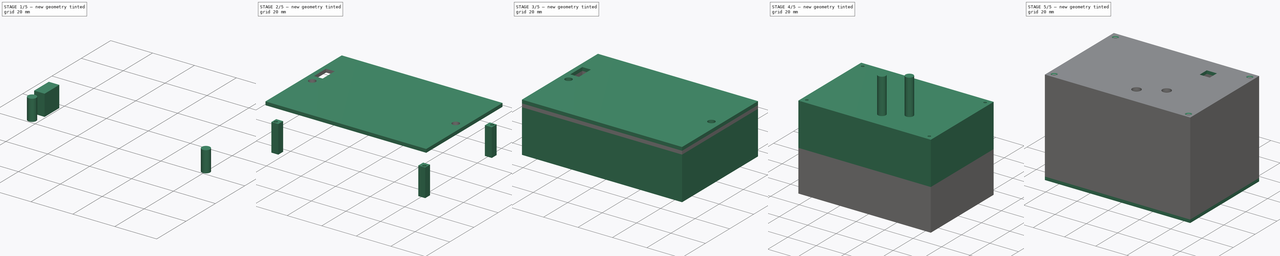
[diagram: build sequence overview — one tinted view per stage of 5, left to right]
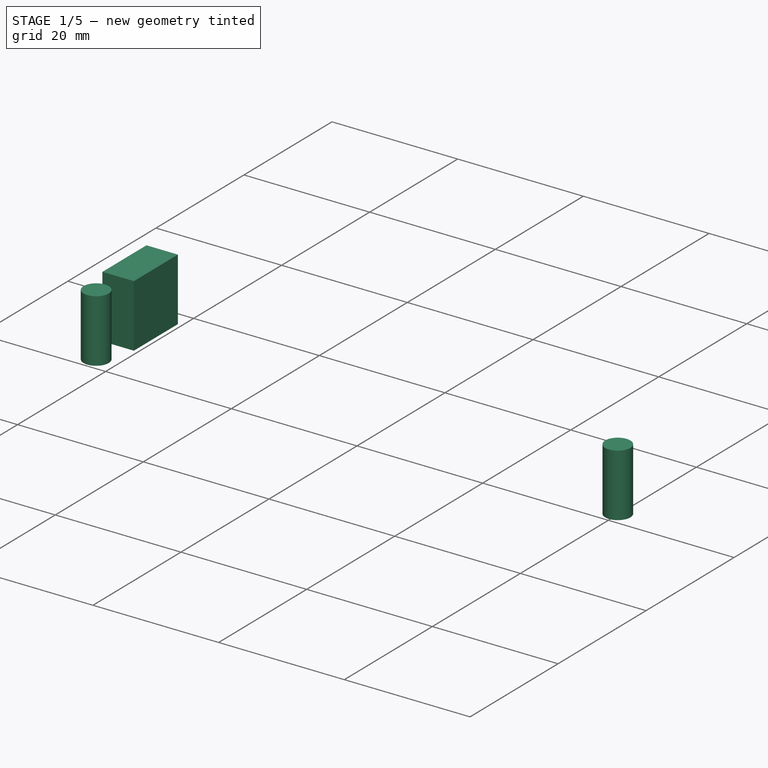
[diagram: stage 1 of 5 — iso view after this stage's code; geometry added in this stage tinted green]
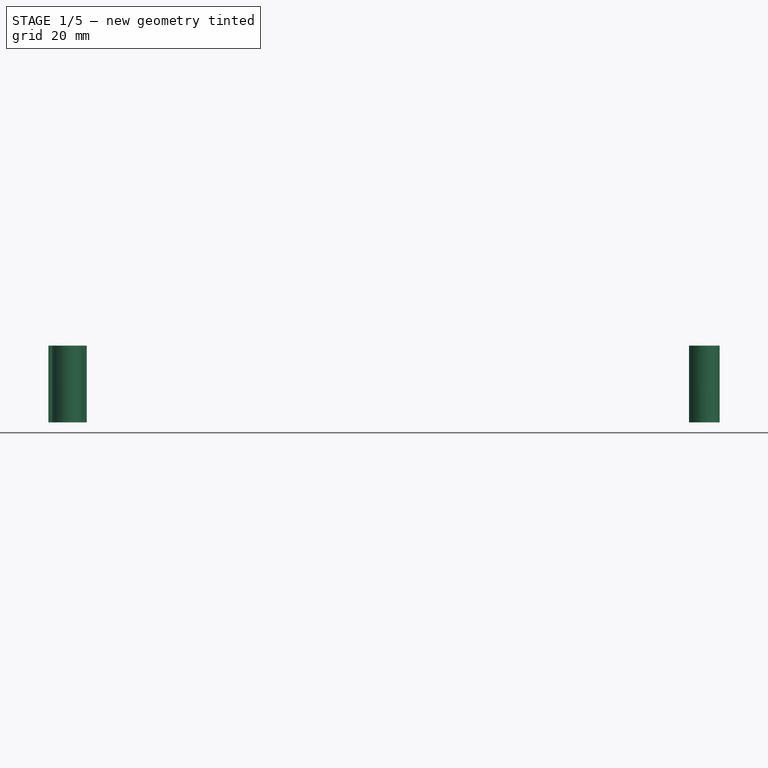
[diagram: stage 1 of 5 — front view after this stage's code; geometry added in this stage tinted green]
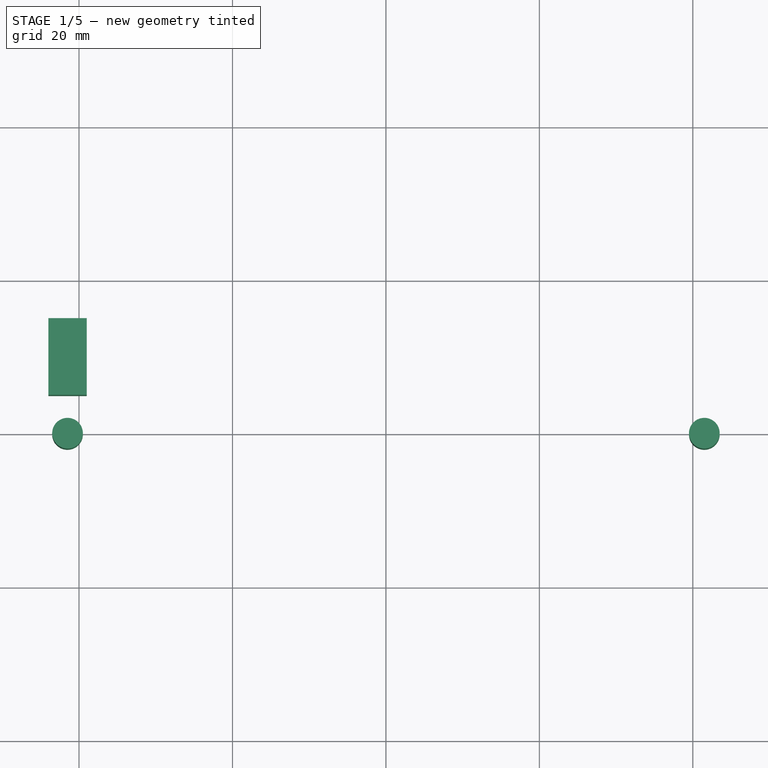
[diagram: stage 1 of 5 — top view after this stage's code; geometry added in this stage tinted green]
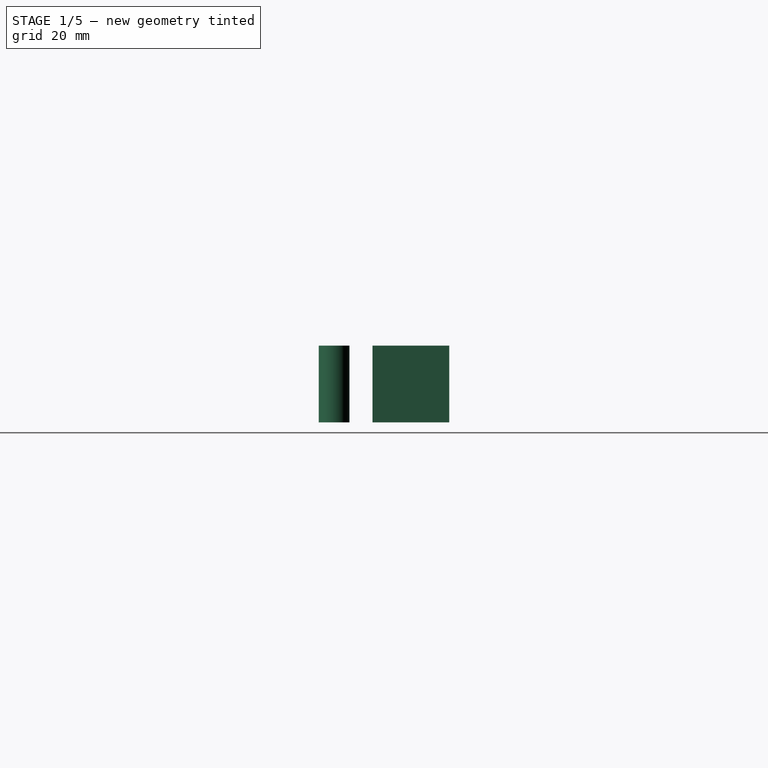
[diagram: stage 1 of 5 — right view after this stage's code; geometry added in this stage tinted green]
FCSTD DOCUMENT  (FreeCAD 0.16R6704 (Git))
Label: CajaDetectorInundacion_01
License: All rights reserved
LicenseURL: http://en.wikipedia.org/wiki/All_rights_reserved
objects: Part::Extrusion×14, Sketcher::SketchObject×12, Part::Cut×6, Part::Chamfer×2, Part::MultiFuse×2
note: 36 computed .brp shape members not serialized (recipe doc carries the construction recipe); baked Part::Feature solids carry a one-line shape summary decoded from their .brp

FEATURE [Sketcher::SketchObject] Sketch
  sketch-geometry (4):
    g0: LineSegment StartX=-46.5 StartY=31.5 StartZ=0 EndX=46.5 EndY=31.5 EndZ=0
    g1: LineSegment StartX=46.5 StartY=31.5 StartZ=0 EndX=46.5 EndY=-31.5 EndZ=0
    g2: LineSegment StartX=46.5 StartY=-31.5 StartZ=0 EndX=-46.5 EndY=-31.5 EndZ=0
    g3: LineSegment StartX=-46.5 StartY=-31.5 StartZ=0 EndX=-46.5 EndY=31.5 EndZ=0
  constraints (12):
    c: Coincident(g0,g1)
    c: Coincident(g1,g2)
    c: Coincident(g2,g3)
    c: Coincident(g3,g0)
    c: Horizontal(g0)
    c: Horizontal(g2)
    c: Vertical(g1)
    c: Vertical(g3)
    c: DistanceX(g0,g0) = 93
    c: DistanceY(g1,g0) = 63
    c: Symmetric(g0,g0,g-2)
    c: Symmetric(g1,g0,g-1)
FEATURE [Part::Extrusion] Extrude  label="Base"
  Base = -> Sketch
  Dir = (0,0,2)
  Solid = true
FEATURE [Sketcher::SketchObject] Sketch005
  Placement = pos=(0,0,2) rot=(0,0,1;0rad)
  Support = -> Extrude [Face6]
  sketch-geometry (2):
    g0: Circle CenterX=-41.5 CenterY=0 CenterZ=0 NormalX=0 NormalY=0 NormalZ=1 Radius=2
    g1: Circle CenterX=41.5 CenterY=0 CenterZ=0 NormalX=0 NormalY=0 NormalZ=1 Radius=2
  constraints (5):
    c: Symmetric(g1,g0,g-2)
    c: PointOnObject(g0,g-1)
    c: DistanceX(g0,g1) = 83
    c: Radius(g0) = 2
    c: Radius(g1) = 2
FEATURE [Part::Extrusion] Extrude005
  Base = -> Sketch005
  Dir = (0,0,-10)
  Solid = true
FEATURE [Part::Cut] Cut  label="BaseCajaPCB"
  Base = -> Extrude
  Tool = -> Extrude005
FEATURE [Sketcher::SketchObject] Sketch007
  Placement = pos=(0,0,2) rot=(0,0,1;0rad)
  sketch-geometry (2):
    g0: Circle CenterX=-41.5 CenterY=0 CenterZ=0 NormalX=0 NormalY=0 NormalZ=1 Radius=2
    g1: Circle CenterX=41.5 CenterY=0 CenterZ=0 NormalX=0 NormalY=0 NormalZ=1 Radius=2
  constraints (5):
    c: Symmetric(g1,g0,g-2)
    c: PointOnObject(g0,g-1)
    c: DistanceX(g0,g1) = 83
    c: Radius(g0) = 2
    c: Radius(g1) = 2
FEATURE [Part::Extrusion] Extrude007
  Base = -> Sketch007
  Dir = (0,0,-10)
  Solid = true
FEATURE [Part::Extrusion] Extrude012  label="HuecoCables001"
  Base = -> Sketch010
  Dir = (0,0,-10)
  Solid = true
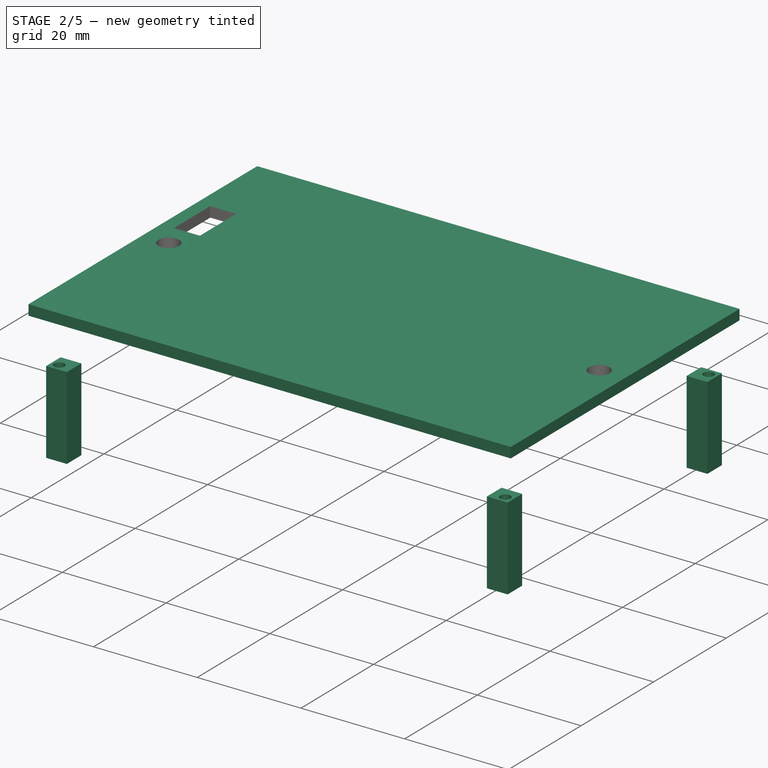
[diagram: stage 2 of 5 — iso view after this stage's code; geometry added in this stage tinted green]
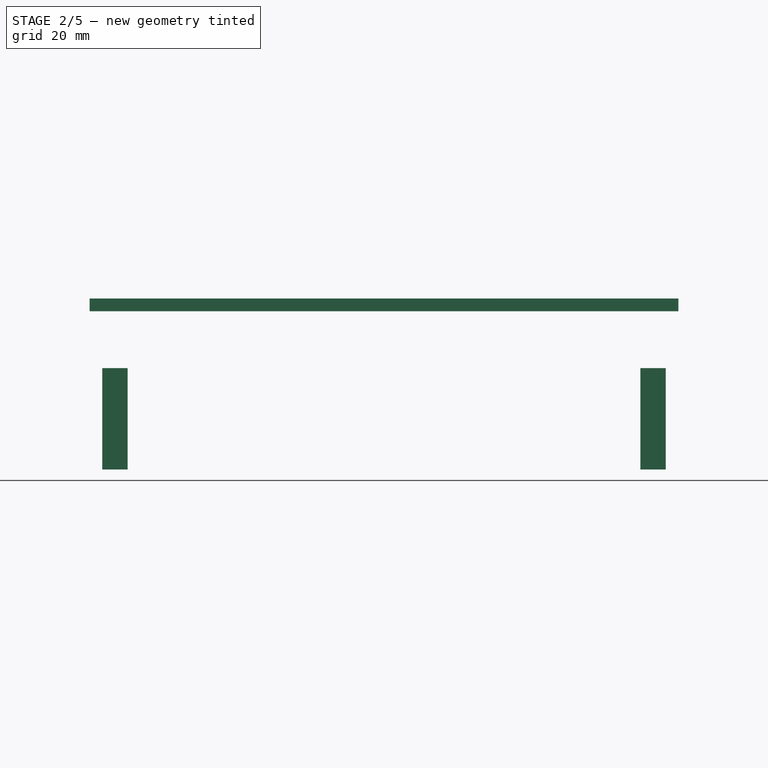
[diagram: stage 2 of 5 — front view after this stage's code; geometry added in this stage tinted green]
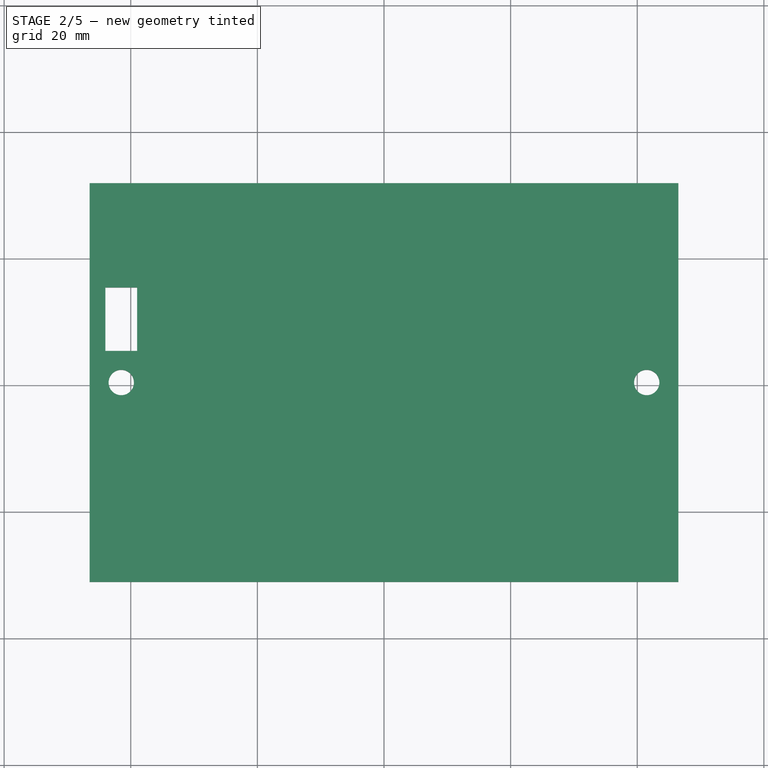
[diagram: stage 2 of 5 — top view after this stage's code; geometry added in this stage tinted green]
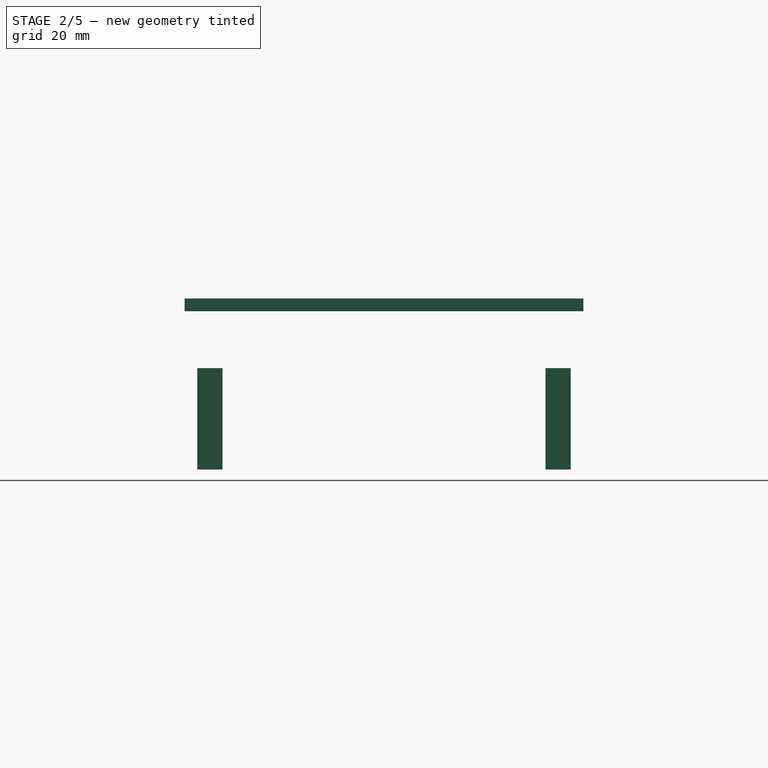
[diagram: stage 2 of 5 — right view after this stage's code; geometry added in this stage tinted green]
FEATURE [Sketcher::SketchObject] Sketch001
  ExternalGeometry = -> [Extrude]
  Placement = pos=(0,0,2) rot=(0,0,1;0rad)
  Support = -> Extrude [Face6]
  sketch-geometry (8):
    g0: LineSegment StartX=-46.5 StartY=31.5 StartZ=0 EndX=46.5 EndY=31.5 EndZ=0
    g1: LineSegment StartX=46.5 StartY=31.5 StartZ=0 EndX=46.5 EndY=-31.5 EndZ=0
    g2: LineSegment StartX=46.5 StartY=-31.5 StartZ=0 EndX=-46.5 EndY=-31.5 EndZ=0
    g3: LineSegment StartX=-46.5 StartY=-31.5 StartZ=0 EndX=-46.5 EndY=31.5 EndZ=0
    g4: LineSegment StartX=-44.5 StartY=29.5 StartZ=0 EndX=44.5 EndY=29.5 EndZ=0
    g5: LineSegment StartX=44.5 StartY=29.5 StartZ=0 EndX=44.5 EndY=-29.5 EndZ=0
    g6: LineSegment StartX=44.5 StartY=-29.5 StartZ=0 EndX=-44.5 EndY=-29.5 EndZ=0
    g7: LineSegment StartX=-44.5 StartY=-29.5 StartZ=0 EndX=-44.5 EndY=29.5 EndZ=0
  constraints (23):
    c: Coincident(g0,g1)
    c: Coincident(g1,g2)
    c: Coincident(g2,g3)
    c: Coincident(g3,g0)
    c: Horizontal(g0)
    c: Horizontal(g2)
    c: Vertical(g1)
    c: Vertical(g3)
    c: Coincident(g4,g5)
    c: Coincident(g5,g6)
    c: Coincident(g6,g7)
    c: Coincident(g7,g4)
    c: Horizontal(g4)
    c: Horizontal(g6)
    c: Vertical(g5)
    c: Vertical(g7)
    c: DistanceX(g4,g0) = 2
    c: DistanceY(g1,g5) = 2
    c: Symmetric(g4,g5,g-1)
    c: Symmetric(g0,g0,g-2)
    c: Coincident(g0,g-3)
    c: Coincident(g2,g-4)
    c: DistanceX(g2,g6) = 2
FEATURE [Part::Extrusion] Extrude001  label="Paredes"
  Base = -> Sketch001
  Dir = (0,0,28)
  Solid = true
FEATURE [Sketcher::SketchObject] Sketch004
  sketch-geometry (4):
    g0: LineSegment StartX=-46.5 StartY=31.5 StartZ=0 EndX=46.5 EndY=31.5 EndZ=0
    g1: LineSegment StartX=46.5 StartY=31.5 StartZ=0 EndX=46.5 EndY=-31.5 EndZ=0
    g2: LineSegment StartX=46.5 StartY=-31.5 StartZ=0 EndX=-46.5 EndY=-31.5 EndZ=0
    g3: LineSegment StartX=-46.5 StartY=-31.5 StartZ=0 EndX=-46.5 EndY=31.5 EndZ=0
  constraints (12):
    c: Coincident(g0,g1)
    c: Coincident(g1,g2)
    c: Coincident(g2,g3)
    c: Coincident(g3,g0)
    c: Horizontal(g0)
    c: Horizontal(g2)
    c: Vertical(g1)
    c: Vertical(g3)
    c: DistanceX(g0,g0) = 93
    c: DistanceY(g1,g0) = 63
    c: Symmetric(g0,g0,g-2)
    c: Symmetric(g1,g0,g-1)
FEATURE [Part::Extrusion] Extrude004  label="BasePortapilas"
  Base = -> Sketch004
  Dir = (0,0,2)
  Placement = pos=(0,0,-2) rot=(0,0,1;0rad)
  Solid = true
FEATURE [Part::Cut] Cut001  label="BaseCajaPortapilas"
  Base = -> Extrude004
  Tool = -> Extrude007
FEATURE [Part::Extrusion] Extrude009  label="TornillosTapaCajaPCB001"
  Base = -> Sketch008
  Dir = (0,0,-16)
  Placement = pos=(0,0,-41) rot=(0,0,1;0rad)
  Solid = true
FEATURE [Part::Cut] Cut003  label="BaseCajaPortapilas001"
  Base = -> Cut001
  Tool = -> Extrude012
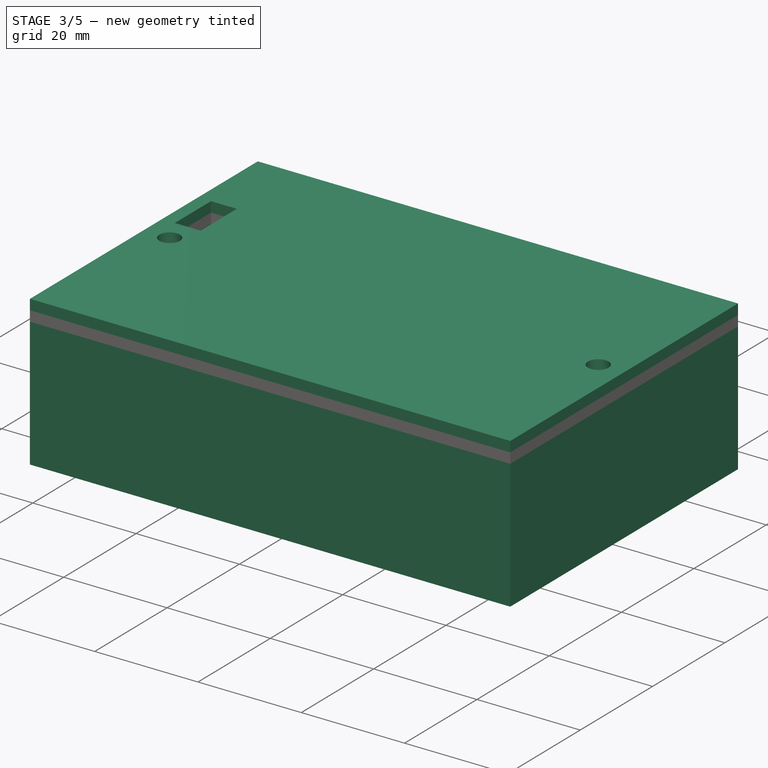
[diagram: stage 3 of 5 — iso view after this stage's code; geometry added in this stage tinted green]
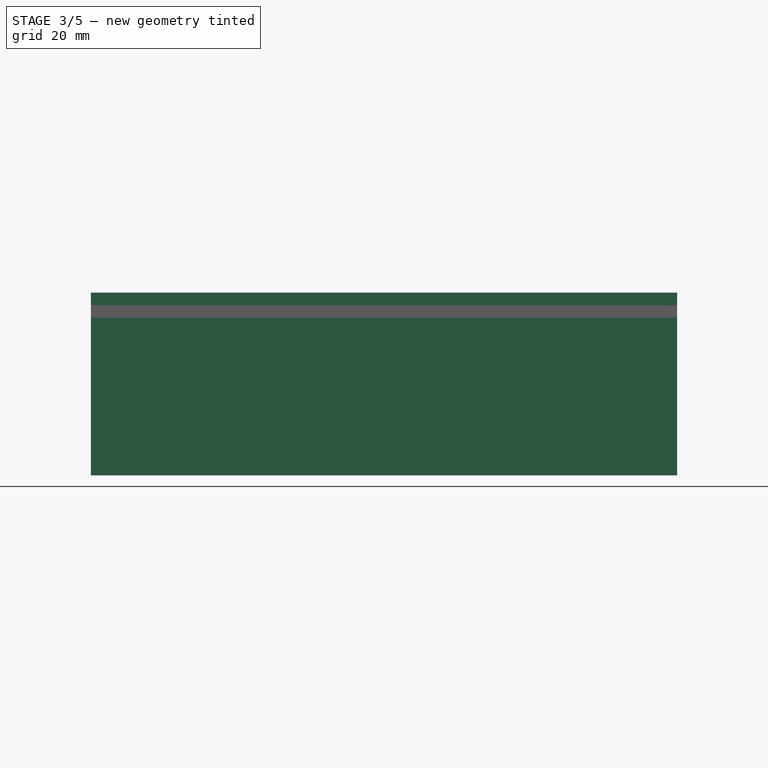
[diagram: stage 3 of 5 — front view after this stage's code; geometry added in this stage tinted green]
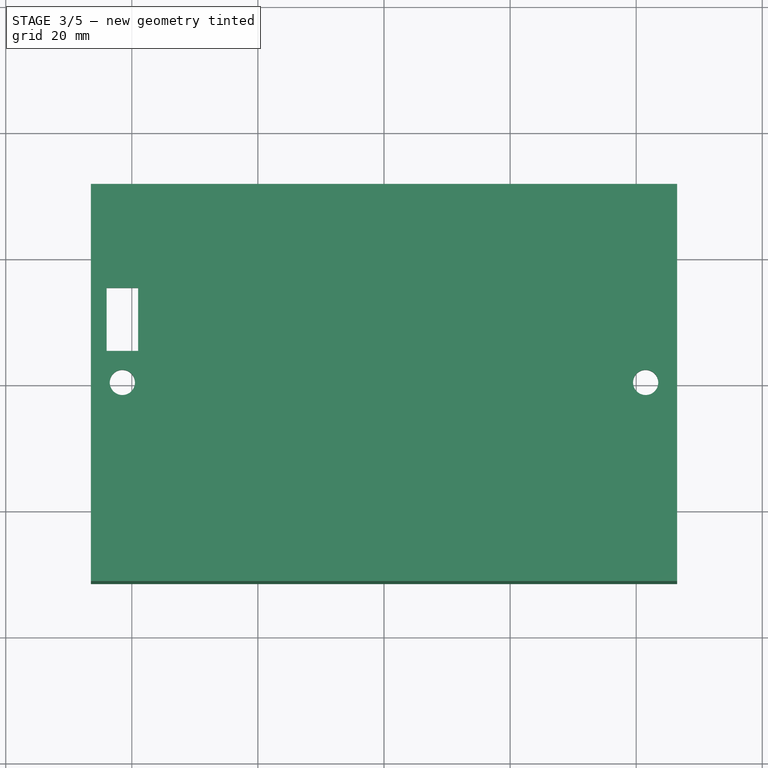
[diagram: stage 3 of 5 — top view after this stage's code; geometry added in this stage tinted green]
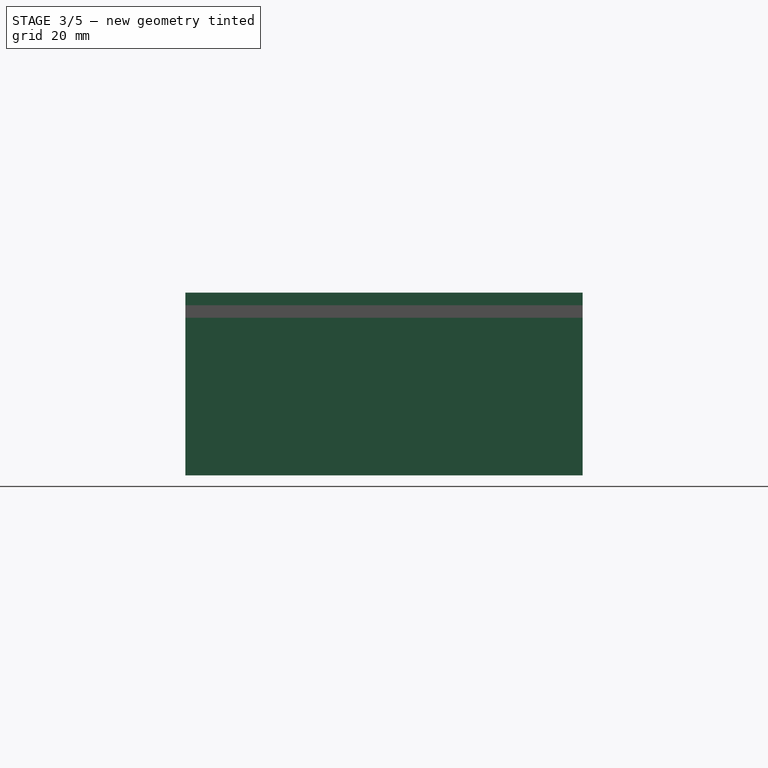
[diagram: stage 3 of 5 — right view after this stage's code; geometry added in this stage tinted green]
FEATURE [Sketcher::SketchObject] Sketch003
  ExternalGeometry = -> [Extrude]
  Placement = pos=(0,0,0) rot=(1,0,0;3.14159rad)
  Support = -> Extrude [Face5]
  sketch-geometry (8):
    g0: LineSegment StartX=-46.5 StartY=31.5 StartZ=0 EndX=46.5 EndY=31.5 EndZ=0
    g1: LineSegment StartX=46.5 StartY=31.5 StartZ=0 EndX=46.5 EndY=-31.5 EndZ=0
    g2: LineSegment StartX=46.5 StartY=-31.5 StartZ=0 EndX=-46.5 EndY=-31.5 EndZ=0
    g3: LineSegment StartX=-46.5 StartY=-31.5 StartZ=0 EndX=-46.5 EndY=31.5 EndZ=0
    g4: LineSegment StartX=-44.5 StartY=29.5 StartZ=0 EndX=44.5 EndY=29.5 EndZ=0
    g5: LineSegment StartX=44.5 StartY=29.5 StartZ=0 EndX=44.5 EndY=-29.5 EndZ=0
    g6: LineSegment StartX=44.5 StartY=-29.5 StartZ=0 EndX=-44.5 EndY=-29.5 EndZ=0
    g7: LineSegment StartX=-44.5 StartY=-29.5 StartZ=0 EndX=-44.5 EndY=29.5 EndZ=0
  constraints (23):
    c: Coincident(g0,g1)
    c: Coincident(g1,g2)
    c: Coincident(g2,g3)
    c: Coincident(g3,g0)
    c: Horizontal(g0)
    c: Horizontal(g2)
    c: Vertical(g1)
    c: Vertical(g3)
    c: Coincident(g4,g5)
    c: Coincident(g5,g6)
    c: Coincident(g6,g7)
    c: Coincident(g7,g4)
    c: Horizontal(g4)
    c: Horizontal(g6)
    c: Vertical(g5)
    c: Vertical(g7)
    c: Distance(g0,g7) = 2
    c: Distance(g4,g0) = 2
    c: Symmetric(g4,g4,g-2)
    c: Symmetric(g4,g5,g-1)
    c: Coincident(g0,g-3)
    c: Coincident(g0,g-3)
    c: Coincident(g2,g-4)
FEATURE [Part::Extrusion] Extrude003  label="ParedesPortapilas"
  Base = -> Sketch003
  Dir = (0,0,-25)
  Placement = pos=(0,0,-2) rot=(0,0,1;0rad)
  Solid = true
FEATURE [Sketcher::SketchObject] Sketch010
  Placement = pos=(0,0,2) rot=(0,0,1;0rad)
  Support = -> Cut [Face5]
  sketch-geometry (4):
    g0: LineSegment StartX=-44 StartY=15 StartZ=0 EndX=-39 EndY=15 EndZ=0
    g1: LineSegment StartX=-39 StartY=15 StartZ=0 EndX=-39 EndY=5 EndZ=0
    g2: LineSegment StartX=-39 StartY=5 StartZ=0 EndX=-44 EndY=5 EndZ=0
    g3: LineSegment StartX=-44 StartY=5 StartZ=0 EndX=-44 EndY=15 EndZ=0
  constraints (12):
    c: Coincident(g0,g1)
    c: Coincident(g1,g2)
    c: Coincident(g2,g3)
    c: Coincident(g3,g0)
    c: Horizontal(g0)
    c: Horizontal(g2)
    c: Vertical(g1)
    c: Vertical(g3)
    c: DistanceX(g0,g0) = 5
    c: DistanceY(g1,g0) = 10
    c: DistanceX(g-2,g1) = -39
    c: DistanceY(g-1,g1) = 5
FEATURE [Part::Extrusion] Extrude011  label="HuecoCables"
  Base = -> Sketch010
  Dir = (0,0,-10)
  Solid = true
FEATURE [Part::Cut] Cut002  label="BaseCajaPCB001"
  Base = -> Cut
  Tool = -> Extrude011
FEATURE [Part::MultiFuse] Fusion001  label="BaseCajaPortapilas002"
  Shapes = -> [Extrude009,Extrude003,Cut003]
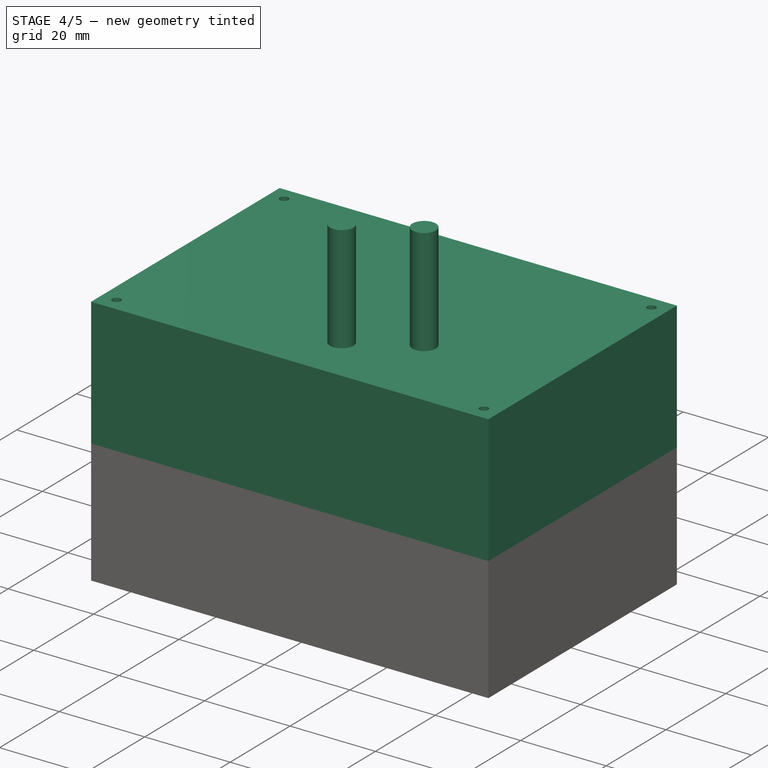
[diagram: stage 4 of 5 — iso view after this stage's code; geometry added in this stage tinted green]
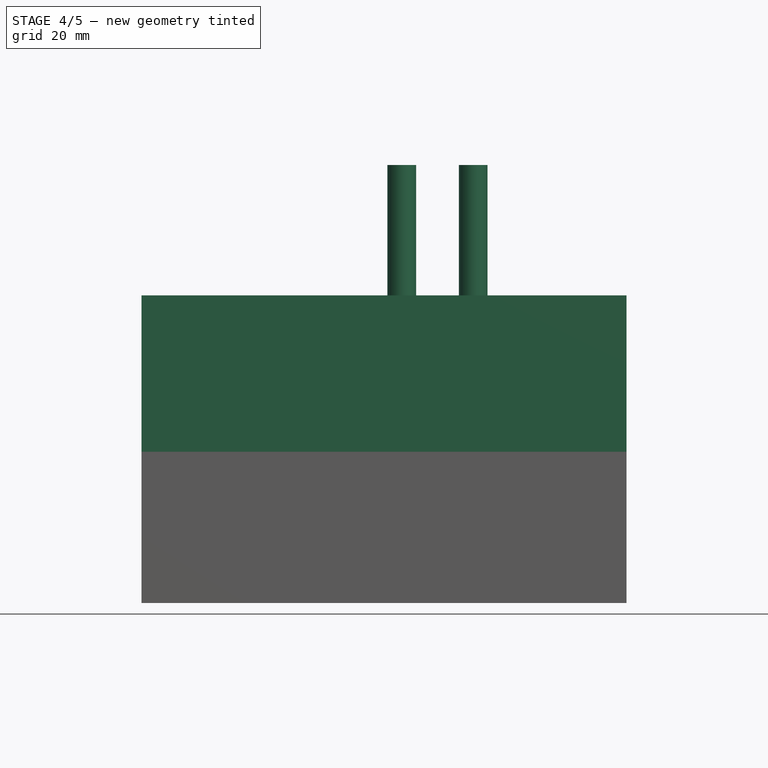
[diagram: stage 4 of 5 — front view after this stage's code; geometry added in this stage tinted green]
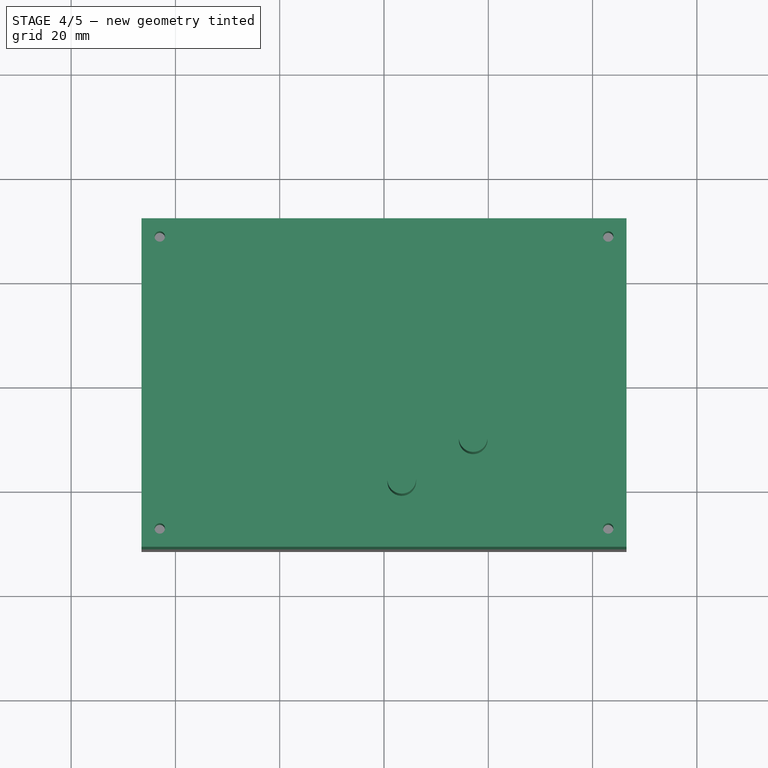
[diagram: stage 4 of 5 — top view after this stage's code; geometry added in this stage tinted green]
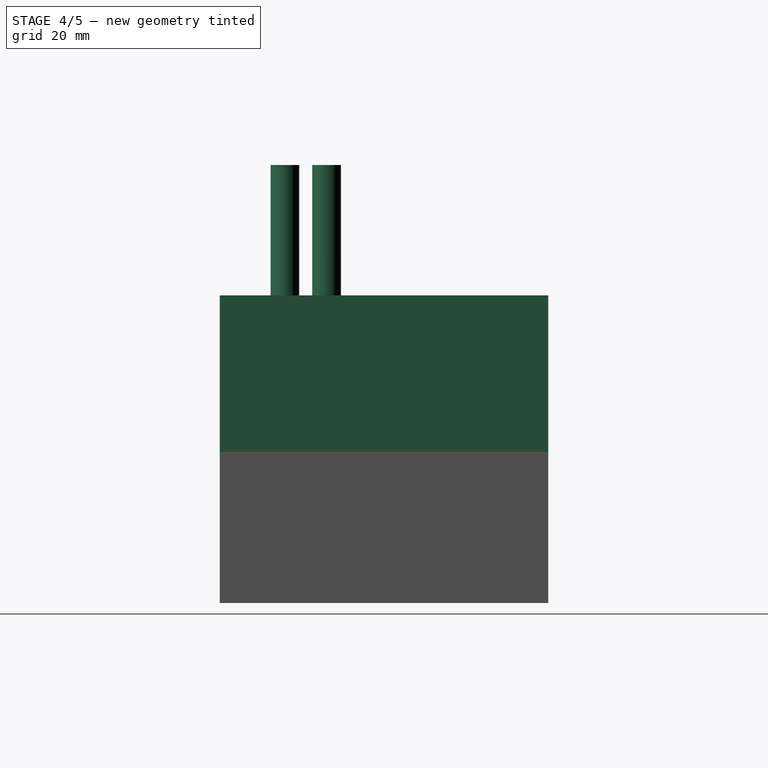
[diagram: stage 4 of 5 — right view after this stage's code; geometry added in this stage tinted green]
FEATURE [Sketcher::SketchObject] Sketch002
  Placement = pos=(0,0,2) rot=(0,0,1;0rad)
  Support = -> Extrude [Face6]
  sketch-geometry (8):
    g0: Circle CenterX=-37 CenterY=20 CenterZ=0 NormalX=0 NormalY=0 NormalZ=1 Radius=2.5
    g1: Circle CenterX=-37 CenterY=-20 CenterZ=0 NormalX=0 NormalY=0 NormalZ=1 Radius=2.5
    g2: Circle CenterX=37 CenterY=20 CenterZ=0 NormalX=0 NormalY=0 NormalZ=1 Radius=2.5
    g3: Circle CenterX=37 CenterY=-20 CenterZ=0 NormalX=0 NormalY=0 NormalZ=1 Radius=2.5
    g4: Circle CenterX=-37 CenterY=20 CenterZ=0 NormalX=0 NormalY=0 NormalZ=1 Radius=1
    g5: Circle CenterX=37 CenterY=20 CenterZ=0 NormalX=0 NormalY=0 NormalZ=1 Radius=1
    g6: Circle CenterX=37 CenterY=-20 CenterZ=0 NormalX=0 NormalY=0 NormalZ=1 Radius=1
    g7: Circle CenterX=-37 CenterY=-20 CenterZ=0 NormalX=0 NormalY=0 NormalZ=1 Radius=1
  constraints (17):
    c: Radius(g4) = 1
    c: Radius(g5) = 1
    c: Radius(g6) = 1
    c: Radius(g7) = 1
    c: Radius(g0) = 2.5
    c: Radius(g2) = 2.5
    c: Radius(g3) = 2.5
    c: Radius(g1) = 2.5
    c: Coincident(g4,g0)
    c: Coincident(g5,g2)
    c: Coincident(g6,g3)
    c: Coincident(g7,g1)
    c: Symmetric(g1,g0,g-1)
    c: Symmetric(g3,g1,g-2)
    c: Symmetric(g2,g0,g-2)
    c: DistanceY(g3,g2) = 40
    c: DistanceX(g0,g2) = 74
FEATURE [Part::Extrusion] Extrude002  label="TornillosBase"
  Base = -> Sketch002
  Dir = (0,0,5)
  Solid = true
FEATURE [Sketcher::SketchObject] Sketch008
  ExternalGeometry = -> [Extrude001]
  Placement = pos=(0,0,30) rot=(0,0,1;0rad)
  Support = -> Extrude001 [Face10]
  sketch-geometry (20):
    g0: LineSegment StartX=-44.5 StartY=29.5 StartZ=0 EndX=-40.5 EndY=29.5 EndZ=0
    g1: LineSegment StartX=-40.5 StartY=29.5 StartZ=0 EndX=-40.5 EndY=25.5 EndZ=0
    g2: LineSegment StartX=-40.5 StartY=25.5 StartZ=0 EndX=-44.5 EndY=25.5 EndZ=0
    g3: LineSegment StartX=-44.5 StartY=25.5 StartZ=0 EndX=-44.5 EndY=29.5 EndZ=0
    g4: LineSegment StartX=44.5 StartY=29.5 StartZ=0 EndX=40.5 EndY=29.5 EndZ=0
    g5: LineSegment StartX=40.5 StartY=29.5 StartZ=0 EndX=40.5 EndY=25.5 EndZ=0
    g6: LineSegment StartX=40.5 StartY=25.5 StartZ=0 EndX=44.5 EndY=25.5 EndZ=0
    g7: LineSegment StartX=44.5 StartY=25.5 StartZ=0 EndX=44.5 EndY=29.5 EndZ=0
    g8: LineSegment StartX=-44.5 StartY=-29.5 StartZ=0 EndX=-40.5 EndY=-29.5 EndZ=0
    g9: LineSegment StartX=-40.5 StartY=-29.5 StartZ=0 EndX=-40.5 EndY=-25.5 EndZ=0
    g10: LineSegment StartX=-40.5 StartY=-25.5 StartZ=0 EndX=-44.5 EndY=-25.5 EndZ=0
    g11: LineSegment StartX=-44.5 StartY=-25.5 StartZ=0 EndX=-44.5 EndY=-29.5 EndZ=0
    g12: LineSegment StartX=40.5 StartY=-25.5 StartZ=0 EndX=44.5 EndY=-25.5 EndZ=0
    g13: LineSegment StartX=44.5 StartY=-25.5 StartZ=0 EndX=44.5 EndY=-29.5 EndZ=0
    g14: LineSegment StartX=44.5 StartY=-29.5 StartZ=0 EndX=40.5 EndY=-29.5 EndZ=0
    g15: LineSegment StartX=40.5 StartY=-29.5 StartZ=0 EndX=40.5 EndY=-25.5 EndZ=0
    g16: Circle CenterX=-43 CenterY=28 CenterZ=0 NormalX=0 NormalY=0 NormalZ=1 Radius=1
    g17: Circle CenterX=43 CenterY=28 CenterZ=0 NormalX=0 NormalY=0 NormalZ=1 Radius=1
    g18: Circle CenterX=43 CenterY=-28 CenterZ=0 NormalX=0 NormalY=0 NormalZ=1 Radius=1
    g19: Circle CenterX=-43 CenterY=-28 CenterZ=0 NormalX=0 NormalY=0 NormalZ=1 Radius=1
  constraints (56):
    c: Coincident(g0,g1)
    c: Coincident(g1,g2)
    c: Coincident(g2,g3)
    c: Coincident(g3,g0)
    c: Horizontal(g0)
    c: Horizontal(g2)
    c: Vertical(g1)
    c: Vertical(g3)
    c: Coincident(g4,g5)
    c: Coincident(g5,g6)
    c: Coincident(g6,g7)
    c: Coincident(g7,g4)
    c: Horizontal(g4)
    c: Horizontal(g6)
    c: Vertical(g5)
    c: Vertical(g7)
    c: Coincident(g8,g9)
    c: Coincident(g9,g10)
    c: Coincident(g10,g11)
    c: Coincident(g11,g8)
    c: Horizontal(g8)
    c: Horizontal(g10)
    c: Vertical(g9)
    c: Vertical(g11)
    c: Coincident(g12,g13)
    c: Coincident(g13,g14)
    c: Coincident(g14,g15)
    c: Coincident(g15,g12)
    c: Horizontal(g12)
    c: Horizontal(g14)
    c: Vertical(g13)
    c: Vertical(g15)
    c: DistanceX(g2,g1) = 4
    c: DistanceY(g1,g0) = 4
    c: Coincident(g0,g-3)
    c: DistanceX(g4,g4) = 4
    c: DistanceY(g5,g4) = 4
    c: Coincident(g4,g-3)
    c: DistanceX(g8,g8) = 4
    c: DistanceY(g8,g9) = 4
    c: Coincident(g8,g-4)
    c: DistanceX(g12,g12) = 4
    c: DistanceY(g14,g12) = 4
    c: Coincident(g13,g-4)
    c: Radius(g16) = 1
    c: Radius(g17) = 1
    c: Radius(g18) = 1
    c: Radius(g19) = 1
    c: Distance(g19,g11) = 1.5
    c: Distance(g19,g10) = 2.5
    c: Distance(g18,g15) = 2.5
    c: Distance(g18,g12) = 2.5
    c: Distance(g17,g6) = 2.5
    c: Distance(g17,g5) = 2.5
    c: Distance(g16,g2) = 2.5
    c: Distance(g16,g1) = 2.5
FEATURE [Part::Extrusion] Extrude008  label="TornillosTapaCajaPCB"
  Base = -> Sketch008
  Dir = (0,0,-16)
  Solid = true
FEATURE [Sketcher::SketchObject] Sketch009
  ExternalGeometry = -> [Extrude001]
  Placement = pos=(0,0,30) rot=(0,0,1;0rad)
  Support = -> Extrude001 [Face10]
  sketch-geometry (8):
    g0: LineSegment StartX=-46.5 StartY=31.5 StartZ=0 EndX=46.5 EndY=31.5 EndZ=0
    g1: LineSegment StartX=46.5 StartY=31.5 StartZ=0 EndX=46.5 EndY=-31.5 EndZ=0
    g2: LineSegment StartX=46.5 StartY=-31.5 StartZ=0 EndX=-46.5 EndY=-31.5 EndZ=0
    g3: LineSegment StartX=-46.5 StartY=-31.5 StartZ=0 EndX=-46.5 EndY=31.5 EndZ=0
    g4: Circle CenterX=-43 CenterY=28 CenterZ=0 NormalX=0 NormalY=0 NormalZ=1 Radius=1
    g5: Circle CenterX=43 CenterY=28 CenterZ=0 NormalX=0 NormalY=0 NormalZ=1 Radius=1
    g6: Circle CenterX=43 CenterY=-28 CenterZ=0 NormalX=0 NormalY=0 NormalZ=1 Radius=1
    g7: Circle CenterX=-43 CenterY=-28 CenterZ=0 NormalX=0 NormalY=0 NormalZ=1 Radius=1
  constraints (22):
    c: Coincident(g0,g1)
    c: Coincident(g1,g2)
    c: Coincident(g2,g3)
    c: Coincident(g3,g0)
    c: Horizontal(g0)
    c: Horizontal(g2)
    c: Vertical(g1)
    c: Vertical(g3)
    c: Coincident(g0,g-3)
    c: Coincident(g1,g-4)
    c: Radius(g4) = 1
    c: Radius(g5) = 1
    c: Radius(g6) = 1
    c: Radius(g7) = 1
    c: Distance(g4,g-5) = 1.5
    c: DistanceX(g-5,g4) = 1.5
    c: Distance(g5,g-5) = 1.5
    c: DistanceX(g5,g-5) = 1.5
    c: Distance(g6,g-6) = 1.5
    c: DistanceX(g6,g-6) = 1.5
    c: Distance(g7,g-6) = 1.5
    c: DistanceX(g-6,g7) = 1.5
FEATURE [Part::Extrusion] Extrude010
  Base = -> Sketch009
  Dir = (0,0,2)
  Solid = true
FEATURE [Sketcher::SketchObject] Sketch011
  ExternalGeometry = -> [Extrude002]
  Placement = pos=(0,0,7) rot=(0,0,1;0rad)
  Support = -> Extrude002 [Face4]
  sketch-geometry (2):
    g0: Circle CenterX=17.1 CenterY=-11 CenterZ=0 NormalX=0 NormalY=0 NormalZ=1 Radius=2.75
    g1: Circle CenterX=3.4 CenterY=-19 CenterZ=0 NormalX=0 NormalY=0 NormalZ=1 Radius=2.75
  constraints (6):
    c: Radius(g0) = 2.75
    c: Radius(g1) = 2.75
    c: DistanceY(g-3,g0) = 9
    c: DistanceX(g0,g-3) = 19.9
    c: DistanceY(g-3,g1) = 1
    c: DistanceX(g1,g-3) = 33.6
FEATURE [Part::Extrusion] Extrude013  label="TaladrosLEDs"
  Base = -> Sketch011
  Dir = (0,0,50)
  Solid = true
FEATURE [Part::MultiFuse] Fusion  label="BaseCajaPCB002"
  Shapes = -> [Extrude002,Extrude008,Cut002,Extrude001]
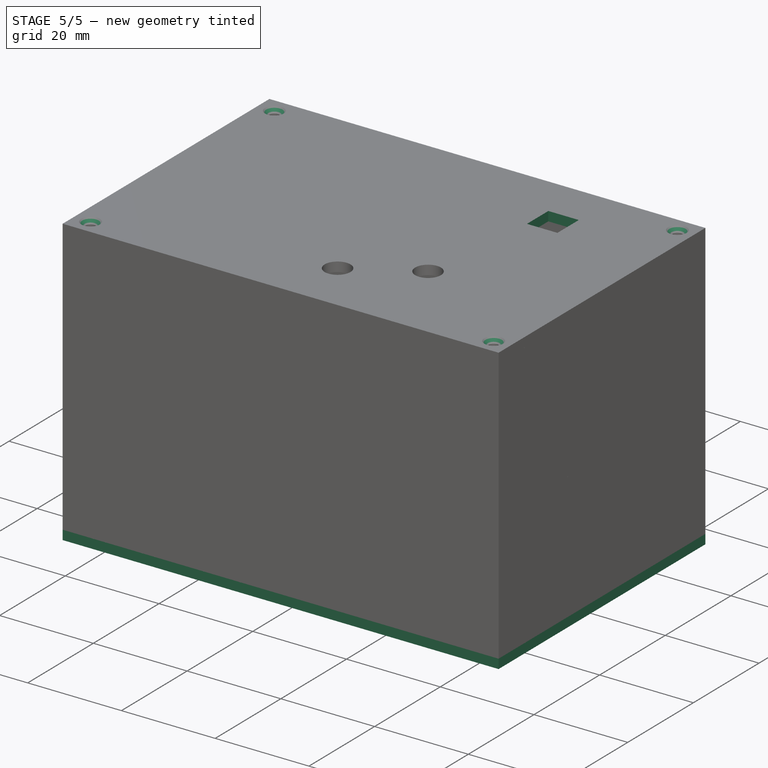
[diagram: stage 5 of 5 — iso view after this stage's code; geometry added in this stage tinted green]
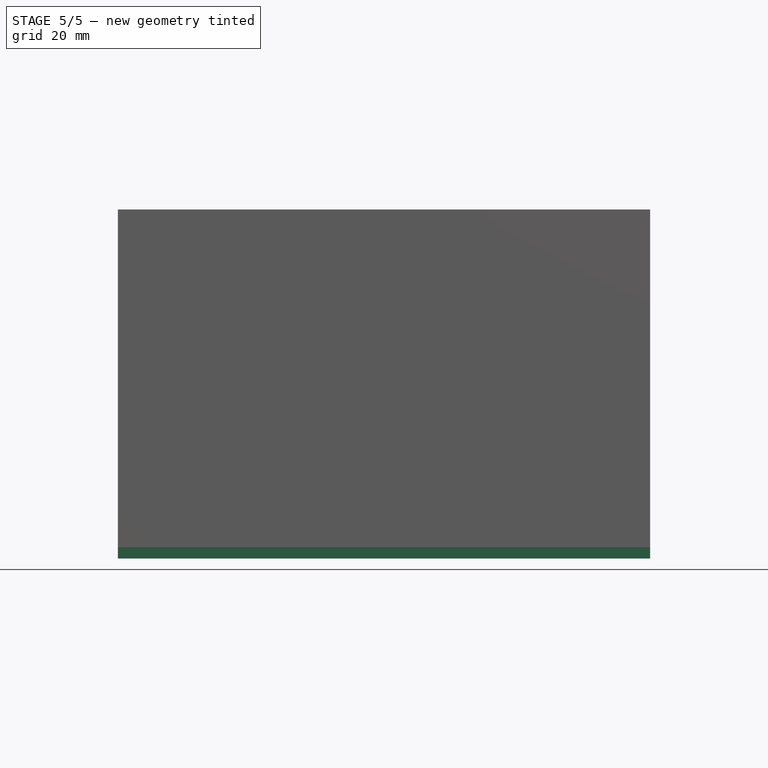
[diagram: stage 5 of 5 — front view after this stage's code; geometry added in this stage tinted green]
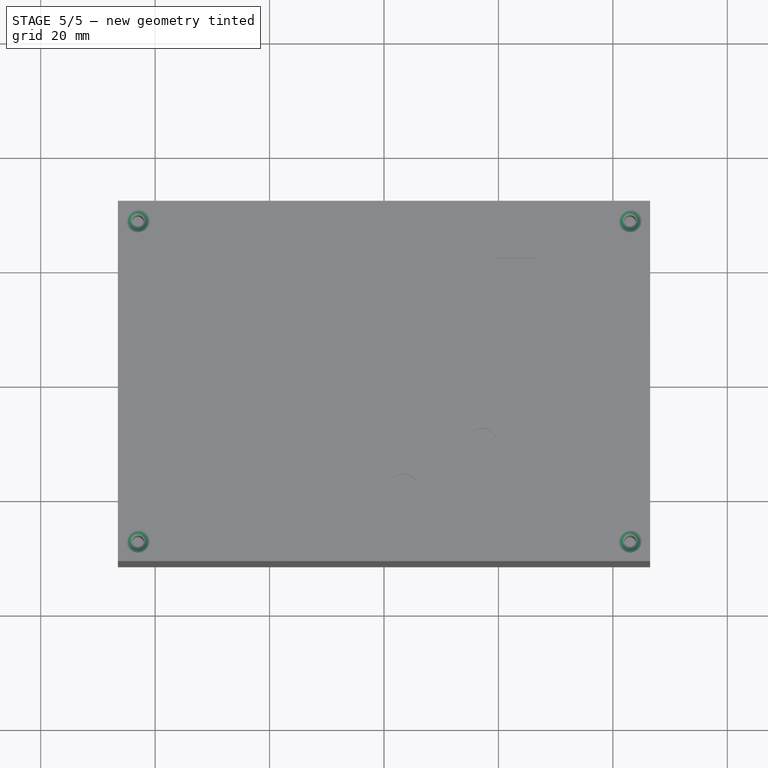
[diagram: stage 5 of 5 — top view after this stage's code; geometry added in this stage tinted green]
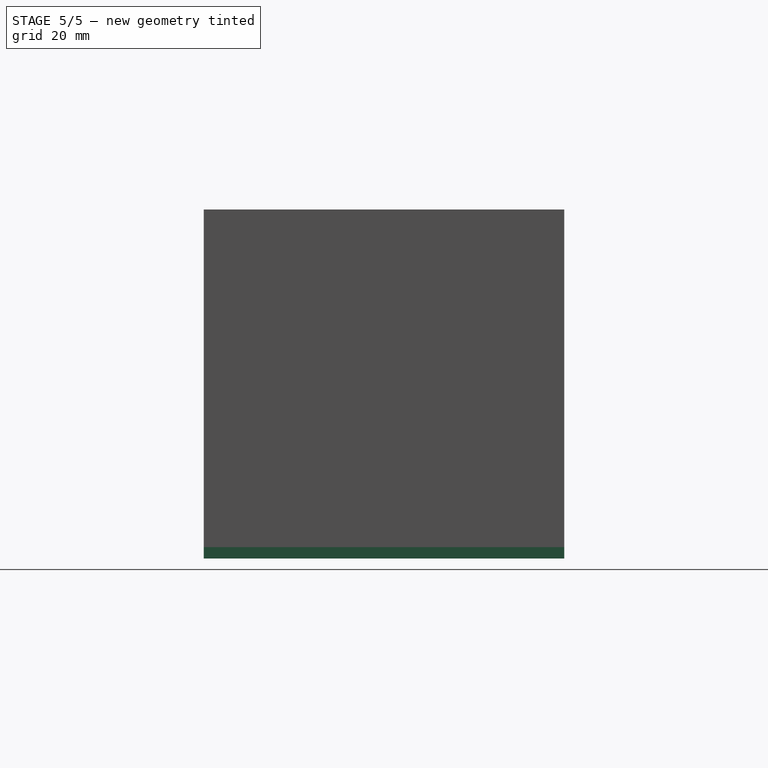
[diagram: stage 5 of 5 — right view after this stage's code; geometry added in this stage tinted green]
FEATURE [Part::Chamfer] Chamfer  label="TapaCajaPCB"
  Base = -> Extrude010
  Edges = 4 edges r=1: [Edge15,Edge18,Edge21,Edge24]
FEATURE [Part::Chamfer] Chamfer001  label="TapaCajaPortapilas"
  Base = -> Extrude010
  Edges = 4 edges r=1: [Edge15,Edge18,Edge21,Edge24]
  Placement = pos=(0,0,3) rot=(0,1,0;3.14159rad)
FEATURE [Part::Cut] Cut004  label="TapaCajaPCB001"
  Base = -> Chamfer
  Tool = -> Extrude013
FEATURE [Sketcher::SketchObject] Sketch012
  Placement = pos=(0,0,32) rot=(0,0,1;0rad)
  Support = -> Cut004 [Face4]
  sketch-geometry (4):
    g0: LineSegment StartX=20 StartY=21.5 StartZ=0 EndX=26.5 EndY=21.5 EndZ=0
    g1: LineSegment StartX=26.5 StartY=21.5 StartZ=0 EndX=26.5 EndY=15 EndZ=0
    g2: LineSegment StartX=26.5 StartY=15 StartZ=0 EndX=20 EndY=15 EndZ=0
    g3: LineSegment StartX=20 StartY=15 StartZ=0 EndX=20 EndY=21.5 EndZ=0
  constraints (12):
    c: Coincident(g0,g1)
    c: Coincident(g1,g2)
    c: Coincident(g2,g3)
    c: Coincident(g3,g0)
    c: Horizontal(g0)
    c: Horizontal(g2)
    c: Vertical(g1)
    c: Vertical(g3)
    c: DistanceX(g0,g0) = 6.5
    c: DistanceY(g1,g0) = 6.5
    c: DistanceX(g-1,g2) = 20
    c: DistanceY(g-1,g2) = 15
FEATURE [Part::Extrusion] Extrude014  label="TaladroInterruptorPruebas"
  Base = -> Sketch012
  Dir = (0,0,-5)
  Solid = true
FEATURE [Part::Cut] Cut005  label="TapaCajaPCB002"
  Base = -> Cut004
  Tool = -> Extrude014
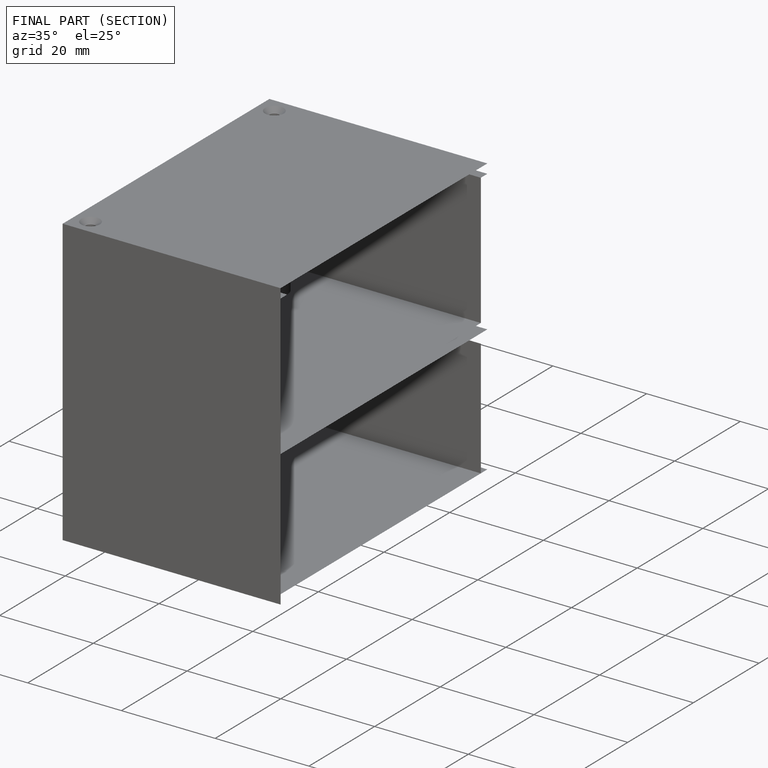
[diagram: finished part — half-section view (interior)]
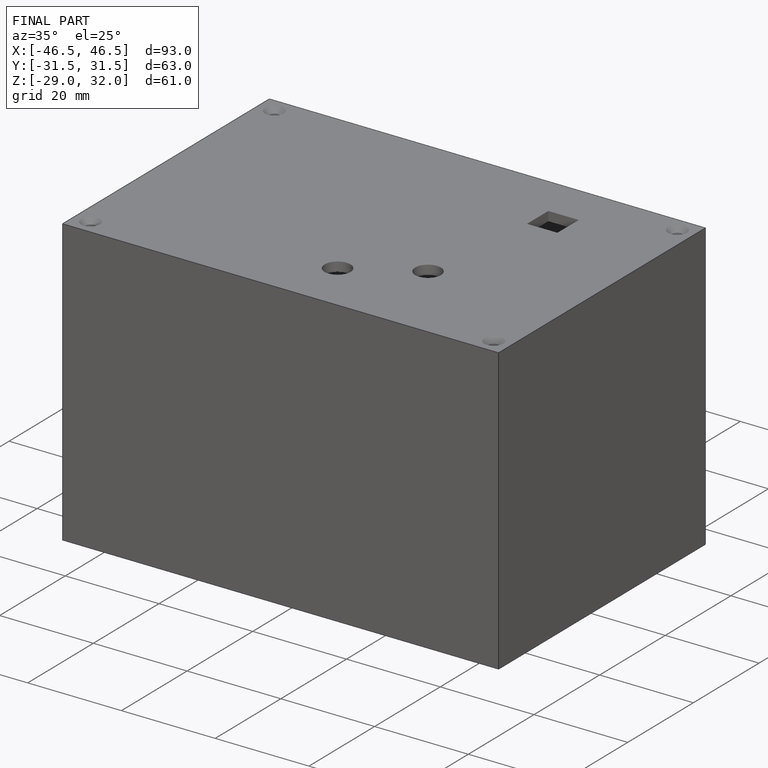
[diagram: finished part — iso view with bounding-box wireframe]
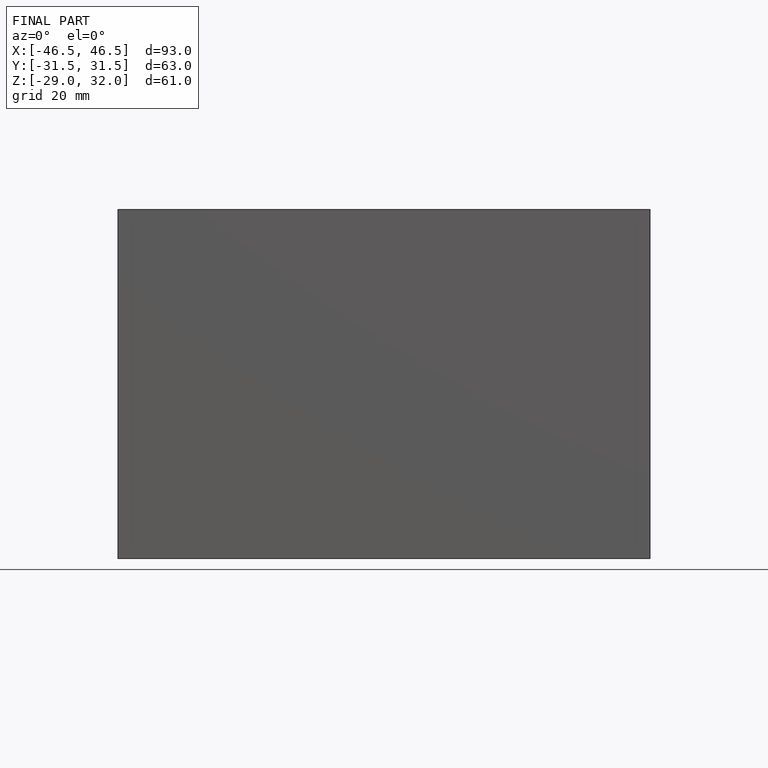
[diagram: finished part — front view with bounding-box wireframe]
